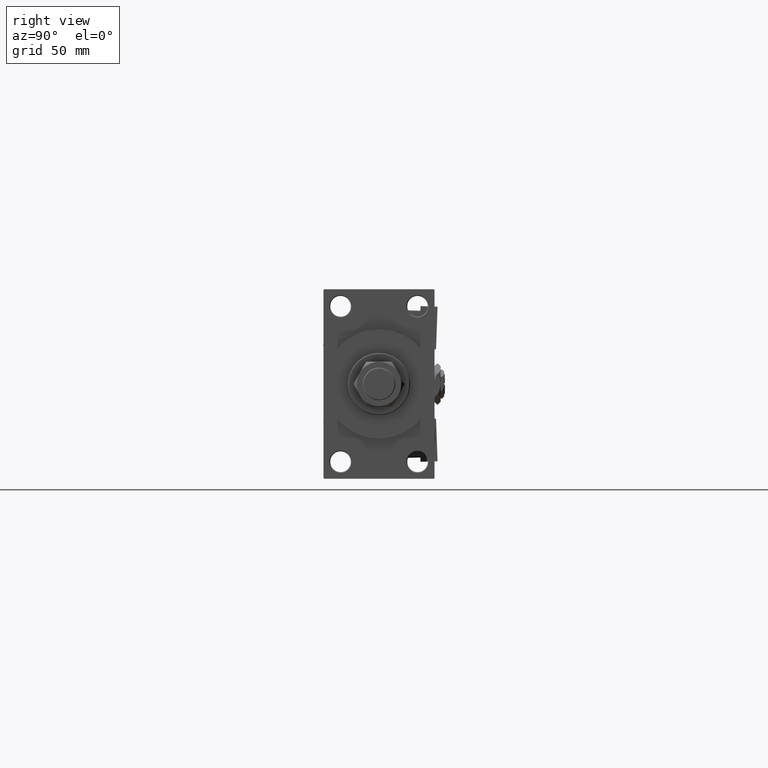
[diagram: clean part render]
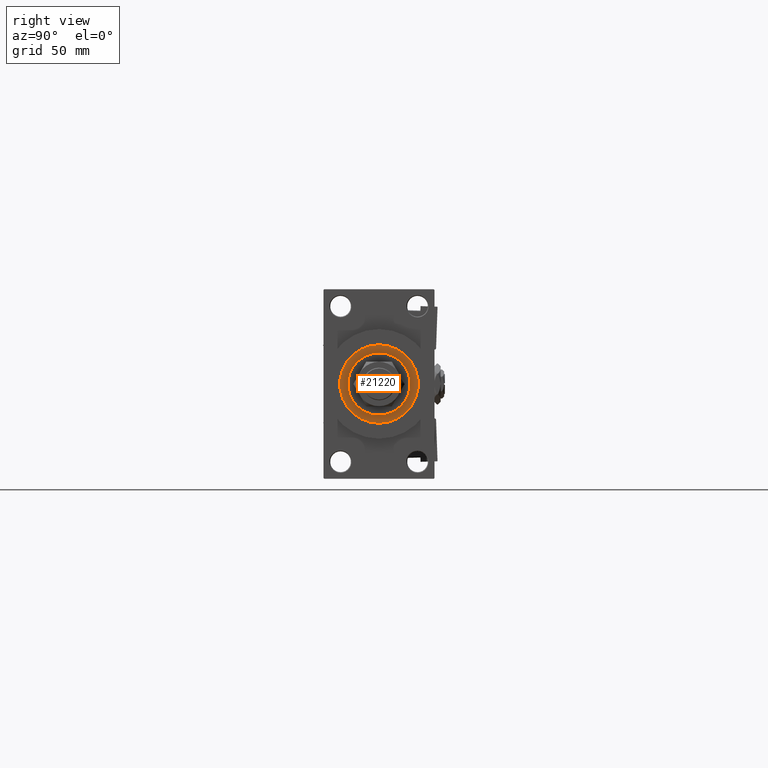
[diagram: same view with one face highlighted and labeled with its STEP entity id]
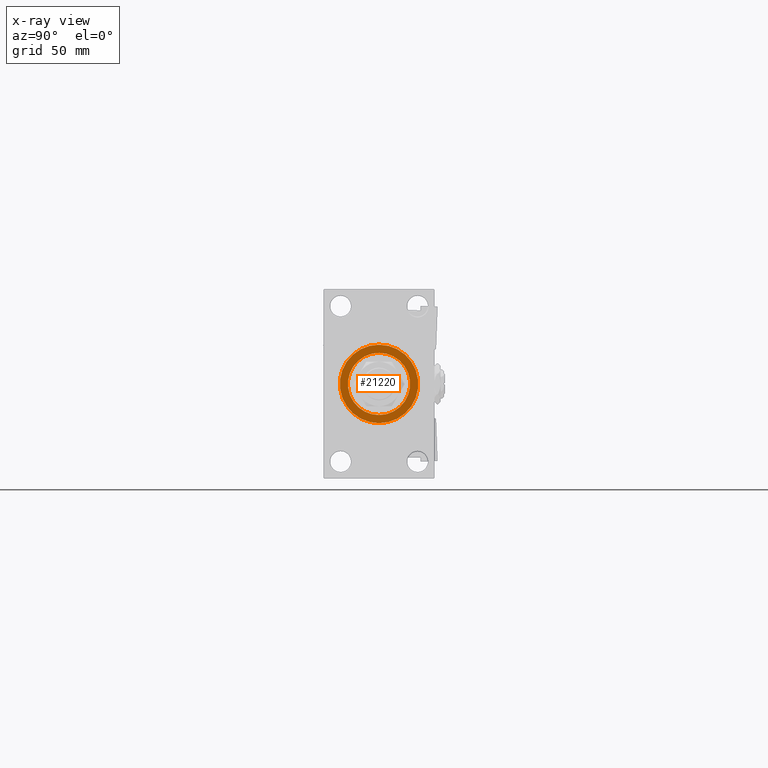
[diagram: x-ray of the same camera — body ghosted, the highlighted face saturated]
A machine part, right view. The second image highlights one B-rep face of the part: STEP entity #21220.
The next image is the same camera in x-ray: the body ghosted, the highlighted face saturated — about 0% of this face is hidden behind the body in this view.
In plain terms, the highlighted planar face has unit normal (1, -0, -0).
Its self-contained STEP definition (entity closure, byte-faithful):
#1727 = CARTESIAN_POINT ( 'NONE',  ( 0.000000000000000000, 0.000000000000000000, 43.25999999999999801 ) ) ;
#2448 = CARTESIAN_POINT ( 'NONE',  ( 21.00000000000000000, 2.571758278209441661E-15, 43.25999999999999801 ) ) ;
#2555 = CARTESIAN_POINT ( 'NONE',  ( 0.000000000000000000, 0.000000000000000000, 43.25999999999999801 ) ) ;
#2816 = VERTEX_POINT ( 'NONE', #53022 ) ;
#3288 = ORIENTED_EDGE ( 'NONE', *, *, #24603, .T. ) ;
#3370 = DIRECTION ( 'NONE',  ( 1.000000000000000000, 0.000000000000000000, -0.000000000000000000 ) ) ;
#3575 = ORIENTED_EDGE ( 'NONE', *, *, #30203, .F. ) ;
#4249 = VERTEX_POINT ( 'NONE', #32867 ) ;
#7384 = CARTESIAN_POINT ( 'NONE',  ( 0.000000000000000000, 0.000000000000000000, 43.25999999999999801 ) ) ;
#7907 = DIRECTION ( 'NONE',  ( 0.000000000000000000, 0.000000000000000000, 1.000000000000000000 ) ) ;
#8343 = EDGE_CURVE ( 'NONE', #51617, #2816, #32251, .T. ) ;
#9436 = AXIS2_PLACEMENT_3D ( 'NONE', #2555, #11175, #3370 ) ;
#11175 = DIRECTION ( 'NONE',  ( 0.000000000000000000, 0.000000000000000000, 1.000000000000000000 ) ) ;
#12631 = EDGE_LOOP ( 'NONE', ( #3575, #12982 ) ) ;
#12982 = ORIENTED_EDGE ( 'NONE', *, *, #51738, .F. ) ;
#15161 = CARTESIAN_POINT ( 'NONE',  ( 0.000000000000000000, 0.000000000000000000, 43.25999999999999801 ) ) ;
#18287 = CIRCLE ( 'NONE', #33752, 26.50000000000000355 ) ;
#19493 = EDGE_LOOP ( 'NONE', ( #52659, #3288 ) ) ;
#19552 = CARTESIAN_POINT ( 'NONE',  ( 0.000000000000000000, 0.000000000000000000, 43.25999999999999801 ) ) ;
#19785 = FACE_BOUND ( 'NONE', #12631, .T. ) ;
#21220 = ADVANCED_FACE ( 'NONE', ( #19785, #44238 ), #35373, .T. ) ;
#22973 = DIRECTION ( 'NONE',  ( 1.000000000000000000, 0.000000000000000000, 0.000000000000000000 ) ) ;
#24603 = EDGE_CURVE ( 'NONE', #2816, #51617, #18287, .T. ) ;
#30203 = EDGE_CURVE ( 'NONE', #4249, #30514, #31017, .T. ) ;
#30509 = AXIS2_PLACEMENT_3D ( 'NONE', #1727, #30754, #34266 ) ;
#30514 = VERTEX_POINT ( 'NONE', #2448 ) ;
#30754 = DIRECTION ( 'NONE',  ( 0.000000000000000000, 0.000000000000000000, 1.000000000000000000 ) ) ;
#31017 = CIRCLE ( 'NONE', #48224, 21.00000000000000000 ) ;
#32251 = CIRCLE ( 'NONE', #30509, 26.50000000000000355 ) ;
#32867 = CARTESIAN_POINT ( 'NONE',  ( -21.00000000000000000, 0.000000000000000000, 43.25999999999999801 ) ) ;
#33752 = AXIS2_PLACEMENT_3D ( 'NONE', #19552, #35952, #34027 ) ;
#34027 = DIRECTION ( 'NONE',  ( 1.000000000000000000, 0.000000000000000000, 0.000000000000000000 ) ) ;
#34266 = DIRECTION ( 'NONE',  ( 1.000000000000000000, 0.000000000000000000, 0.000000000000000000 ) ) ;
#35373 = PLANE ( 'NONE',  #9436 ) ;
#35952 = DIRECTION ( 'NONE',  ( 0.000000000000000000, 0.000000000000000000, 1.000000000000000000 ) ) ;
#38837 = DIRECTION ( 'NONE',  ( 0.000000000000000000, 0.000000000000000000, 1.000000000000000000 ) ) ;
#40427 = AXIS2_PLACEMENT_3D ( 'NONE', #7384, #7907, #43941 ) ;
#42879 = CARTESIAN_POINT ( 'NONE',  ( -26.50000000000000355, 0.000000000000000000, 43.25999999999999801 ) ) ;
#42981 = CIRCLE ( 'NONE', #40427, 21.00000000000000000 ) ;
#43941 = DIRECTION ( 'NONE',  ( 1.000000000000000000, 0.000000000000000000, 0.000000000000000000 ) ) ;
#44238 = FACE_OUTER_BOUND ( 'NONE', #19493, .T. ) ;
#48224 = AXIS2_PLACEMENT_3D ( 'NONE', #15161, #38837, #22973 ) ;
#51617 = VERTEX_POINT ( 'NONE', #42879 ) ;
#51738 = EDGE_CURVE ( 'NONE', #30514, #4249, #42981, .T. ) ;
#52659 = ORIENTED_EDGE ( 'NONE', *, *, #8343, .T. ) ;
#53022 = CARTESIAN_POINT ( 'NONE',  ( 26.50000000000000355, 3.245314017740486554E-15, 43.25999999999999801 ) ) ;